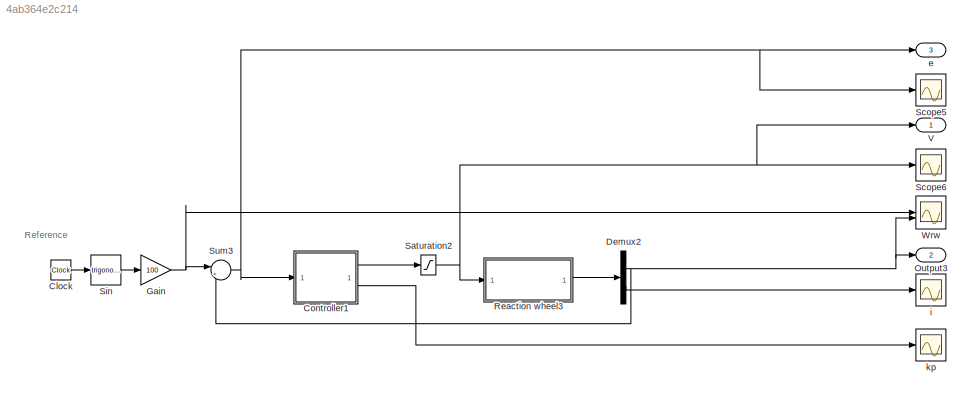
MODEL slx_4ab364e2c214
KIND model
CONFIG AbsTol = auto
CONFIG EnableMultiTasking = off
CONFIG FixedStep = auto
CONFIG MaxStep = auto
CONFIG MinStep = auto
CONFIG RelTol = 1e-3
CONFIG SampleTimeConstraint = Unconstrained
CONFIG SolverName = VariableStepAuto
CONFIG StartTime = 0.0
CONFIG StopTime = 1000
BLOCK [Clock] Clock
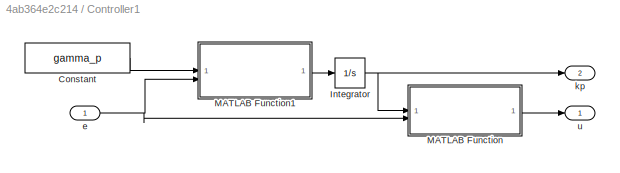
BLOCK [SubSystem] Controller1
BLOCK [Constant] Controller1/Constant
  Value = gamma_p
BLOCK [Integrator] Controller1/Integrator
  InitialCondition = Kp_init
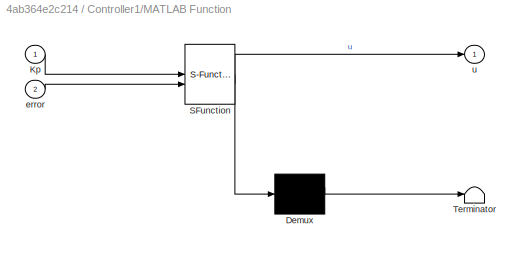
BLOCK [SubSystem] Controller1/MATLAB Function
  ErrorFcn = Stateflow.Translate.translate
  PermitHierarchicalResolution = ExplicitOnly
  SFBlockType = MATLAB Function
  TreatAsAtomicUnit = on
BLOCK [Demux] Controller1/MATLAB Function/ Demux 
  Outputs = 1
BLOCK [S-Function] Controller1/MATLAB Function/ SFunction 
  EnableBusSupport = on
  FunctionName = sf_sfun
  PortCounts = [2 2]
  SFcnIsStateOwnerBlock = off
  SFunctionDeploymentMode = off
  Tag = Stateflow S-Function 2
BLOCK [Terminator] Controller1/MATLAB Function/ Terminator 
BLOCK [Inport] Controller1/MATLAB Function/Kp
BLOCK [Inport] Controller1/MATLAB Function/error
  Port = 2
BLOCK [Outport] Controller1/MATLAB Function/u
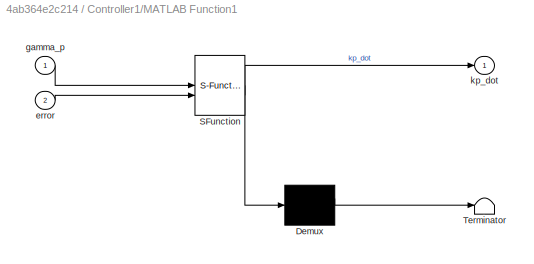
BLOCK [SubSystem] Controller1/MATLAB Function1
  ErrorFcn = Stateflow.Translate.translate
  PermitHierarchicalResolution = ExplicitOnly
  SFBlockType = MATLAB Function
  TreatAsAtomicUnit = on
BLOCK [Demux] Controller1/MATLAB Function1/ Demux 
  Outputs = 1
BLOCK [S-Function] Controller1/MATLAB Function1/ SFunction 
  EnableBusSupport = on
  FunctionName = sf_sfun
  PortCounts = [2 2]
  SFcnIsStateOwnerBlock = off
  SFunctionDeploymentMode = off
  Tag = Stateflow S-Function 1
BLOCK [Terminator] Controller1/MATLAB Function1/ Terminator 
BLOCK [Inport] Controller1/MATLAB Function1/error
  Port = 2
BLOCK [Inport] Controller1/MATLAB Function1/gamma_p
BLOCK [Outport] Controller1/MATLAB Function1/kp_dot
BLOCK [Inport] Controller1/e
BLOCK [Outport] Controller1/kp
  Port = 2
BLOCK [Outport] Controller1/u
BLOCK [Demux] Demux2
  Outputs = 2
BLOCK [Gain] Gain
  Gain = 100
BLOCK [Outport] Output3
  Port = 2
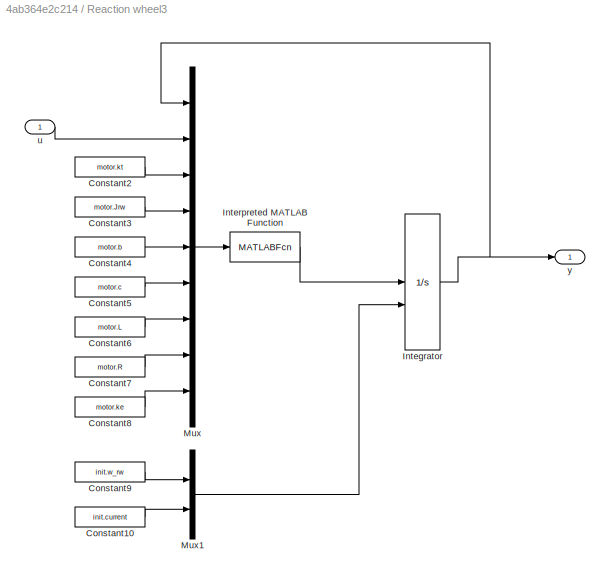
BLOCK [SubSystem] Reaction wheel3
BLOCK [Constant] Reaction wheel3/Constant10
  Value = init.current
BLOCK [Constant] Reaction wheel3/Constant2
  Value = motor.kt
BLOCK [Constant] Reaction wheel3/Constant3
  Value = motor.Jrw
BLOCK [Constant] Reaction wheel3/Constant4
  Value = motor.b
BLOCK [Constant] Reaction wheel3/Constant5
  Value = motor.c
BLOCK [Constant] Reaction wheel3/Constant6
  Value = motor.L
BLOCK [Constant] Reaction wheel3/Constant7
  Value = motor.R
BLOCK [Constant] Reaction wheel3/Constant8
  Value = motor.ke
BLOCK [Constant] Reaction wheel3/Constant9
  Value = init.w_rw
BLOCK [Integrator] Reaction wheel3/Integrator
  InitialConditionSource = external
BLOCK [MATLABFcn] Reaction wheel3/Interpreted MATLAB Function
  MATLABFcn = BrushelessModel_simu
  OutputDimensions = 2
BLOCK [Mux] Reaction wheel3/Mux
  DisplayOption = bar
  Inputs = 9
BLOCK [Mux] Reaction wheel3/Mux1
  DisplayOption = bar
  Inputs = 2
BLOCK [Inport] Reaction wheel3/u
BLOCK [Outport] Reaction wheel3/y
BLOCK [Saturate] Saturation2
  LowerLimit = -12
  UpperLimit = 12
BLOCK [Scope] Scope5
  Floating = off
  NumInputPorts = 1
  ScopeSpecificationString = Simulink.scopes.TimeScopeBlockCfg('CurrentConfiguration', extmgr.ConfigurationSet(extmgr.Configuration('Core','General UI',true),extmgr.Configuration('Core','Source UI',true),extmgr.Configuration('Sources','WiredSimulink',true,'DataLoggingVariableName','ScopeData1'),extmgr.Configuration('Visuals','Time Domain',true,'SerializedDisplays',{struct('MinYLimReal','-56.56255','MaxYLimReal','179.15647','Y...<+1531ch>
BLOCK [Scope] Scope6
  Floating = off
  NumInputPorts = 1
  ScopeSpecificationString = Simulink.scopes.TimeScopeBlockCfg('CurrentConfiguration', extmgr.ConfigurationSet(extmgr.Configuration('Core','General UI',true),extmgr.Configuration('Core','Source UI',true),extmgr.Configuration('Sources','WiredSimulink',true,'DataLoggingVariableName','ScopeData2'),extmgr.Configuration('Visuals','Time Domain',true,'SerializedDisplays',{struct('MinYLimReal','-242824517393007794716672.00000','MaxYL...<+1703ch>
BLOCK [Trigonometry] Sin
BLOCK [Sum] Sum3
  Inputs = |+-
BLOCK [Outport] V
BLOCK [Scope] Wrw
  Floating = off
  NumInputPorts = 2
  ScopeSpecificationString = Simulink.scopes.TimeScopeBlockCfg('CurrentConfiguration', extmgr.ConfigurationSet(extmgr.Configuration('Core','General UI',true),extmgr.Configuration('Core','Source UI',true),extmgr.Configuration('Sources','WiredSimulink',true,'DataLoggingVariableName','ScopeData3'),extmgr.Configuration('Visuals','Time Domain',true,'SerializedDisplays',{struct('MinYLimReal','-125.00000','MaxYLimReal','125.00000','...<+1572ch>
BLOCK [Outport] e
  Port = 3
BLOCK [Scope] i
  Floating = off
  NumInputPorts = 1
  ScopeSpecificationString = Simulink.scopes.TimeScopeBlockCfg('CurrentConfiguration', extmgr.ConfigurationSet(extmgr.Configuration('Core','General UI',true),extmgr.Configuration('Core','Source UI',true),extmgr.Configuration('Sources','WiredSimulink',true,'DataLoggingVariableName','ScopeData4'),extmgr.Configuration('Visuals','Time Domain',true,'SerializedDisplays',{struct('MinYLimReal','-34683888302.65777','MaxYLimReal','1418...<+1607ch>
BLOCK [Scope] kp
  Floating = off
  NumInputPorts = 1
  ScopeSpecificationString = Simulink.scopes.TimeScopeBlockCfg('CurrentConfiguration', extmgr.ConfigurationSet(extmgr.Configuration('Core','General UI',true),extmgr.Configuration('Core','Source UI',true),extmgr.Configuration('Sources','WiredSimulink',true,'DataLoggingVariableName','ScopeData1'),extmgr.Configuration('Visuals','Time Domain',true,'SerializedDisplays',{struct('MinYLimReal','-34683888302.65777','MaxYLimReal','1418...<+1607ch>
ANNOTATION (root): Reference
LINE Clock:1 -> Sin:1
LINE Controller1/Constant:1 -> Controller1/MATLAB Function1:1
NET Controller1/Integrator:1 -> Controller1/MATLAB Function:1, Controller1/kp:1
LINE Controller1/MATLAB Function1:1 -> Controller1/Integrator:1
LINE Controller1/MATLAB Function:1 -> Controller1/u:1
NET Controller1/e:1 -> Controller1/MATLAB Function1:2, Controller1/MATLAB Function:2
LINE Controller1:1 -> Saturation2:1
LINE Controller1:2 -> kp:1
NET Demux2:1 -> Output3:1, Sum3:2, Wrw:2
LINE Demux2:2 -> i:1
NET Gain:1 -> Sum3:1, Wrw:1
LINE Reaction wheel3/Constant10:1 -> Reaction wheel3/Mux1:2
LINE Reaction wheel3/Constant2:1 -> Reaction wheel3/Mux:3
LINE Reaction wheel3/Constant3:1 -> Reaction wheel3/Mux:4
LINE Reaction wheel3/Constant4:1 -> Reaction wheel3/Mux:5
LINE Reaction wheel3/Constant5:1 -> Reaction wheel3/Mux:6
LINE Reaction wheel3/Constant6:1 -> Reaction wheel3/Mux:7
LINE Reaction wheel3/Constant7:1 -> Reaction wheel3/Mux:8
LINE Reaction wheel3/Constant8:1 -> Reaction wheel3/Mux:9
LINE Reaction wheel3/Constant9:1 -> Reaction wheel3/Mux1:1
NET Reaction wheel3/Integrator:1 -> Reaction wheel3/Mux:1, Reaction wheel3/y:1
LINE Reaction wheel3/Interpreted MATLAB Function:1 -> Reaction wheel3/Integrator:1
LINE Reaction wheel3/Mux1:1 -> Reaction wheel3/Integrator:2
LINE Reaction wheel3/Mux:1 -> Reaction wheel3/Interpreted MATLAB Function:1
LINE Reaction wheel3/u:1 -> Reaction wheel3/Mux:2
LINE Reaction wheel3:1 -> Demux2:1
NET Saturation2:1 -> Reaction wheel3:1, Scope6:1, V:1
LINE Sin:1 -> Gain:1
NET Sum3:1 -> Controller1:1, Scope5:1, e:1
note: NET lines group one-source signal fan-out (src -> all destinations, sorted); 1:1 wires keep LINE
CHART Controller1/MATLAB Function states=1 transitions=1
  STATE_LABEL 'eML_blk_kernel()'
  STATE_LABEL 'SCRIPT:\nfunction u = P_control(Kp,error)\n    u = Kp * error;\nend\n'
CHART Controller1/MATLAB Function1 states=1 transitions=1
  STATE_LABEL 'eML_blk_kernel()'
  STATE_LABEL 'SCRIPT:\nfunction kp_dot = fcn(gamma_p,error)\n    kp_dot = gamma_p * abs(error);\nend\n'
CHART  states=0 transitions=0
CHART  states=0 transitions=0
